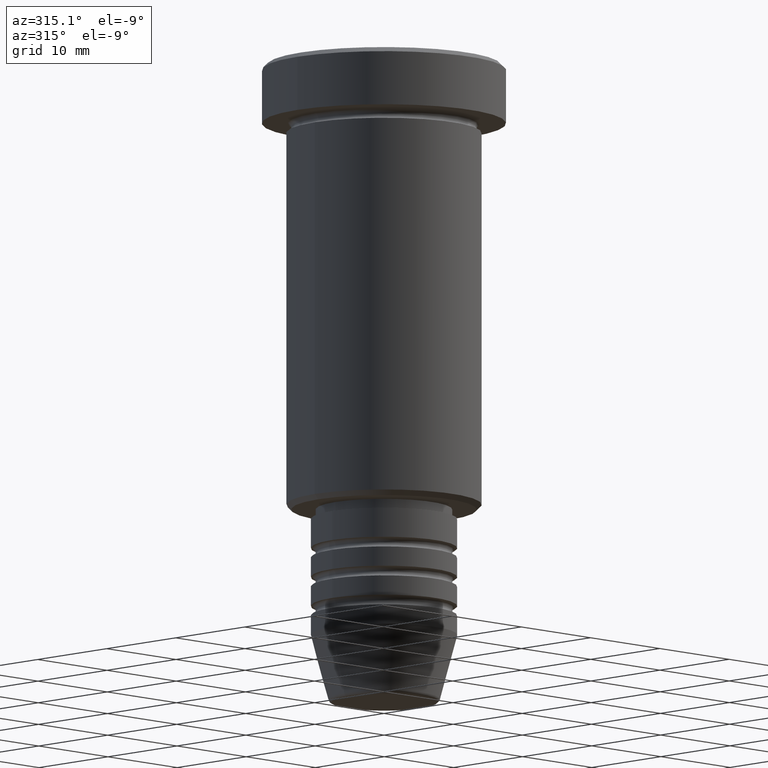
[diagram: clean part render]
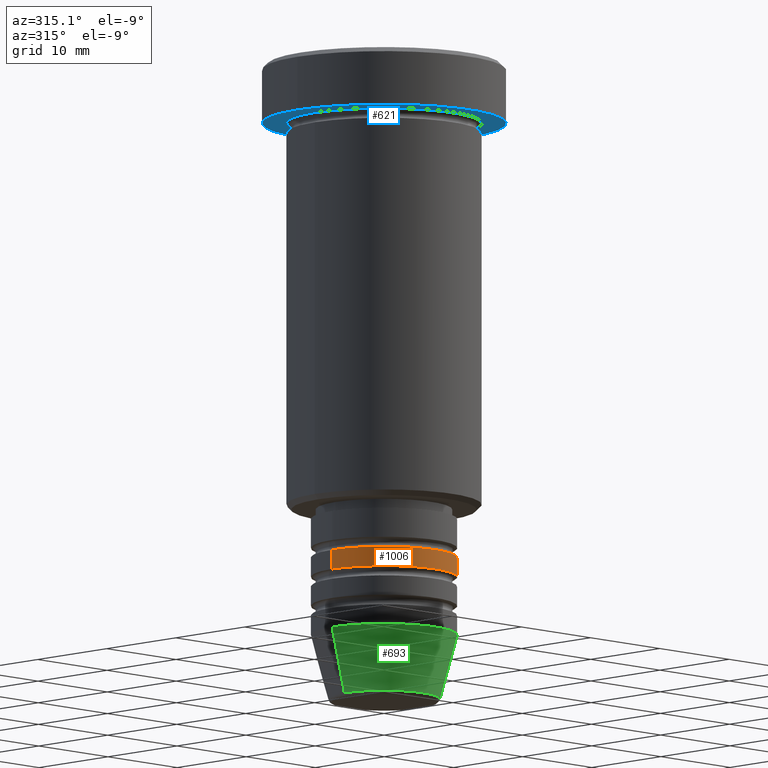
[diagram: same view with three faces highlighted in distinct colors, each labeled with its STEP entity id]
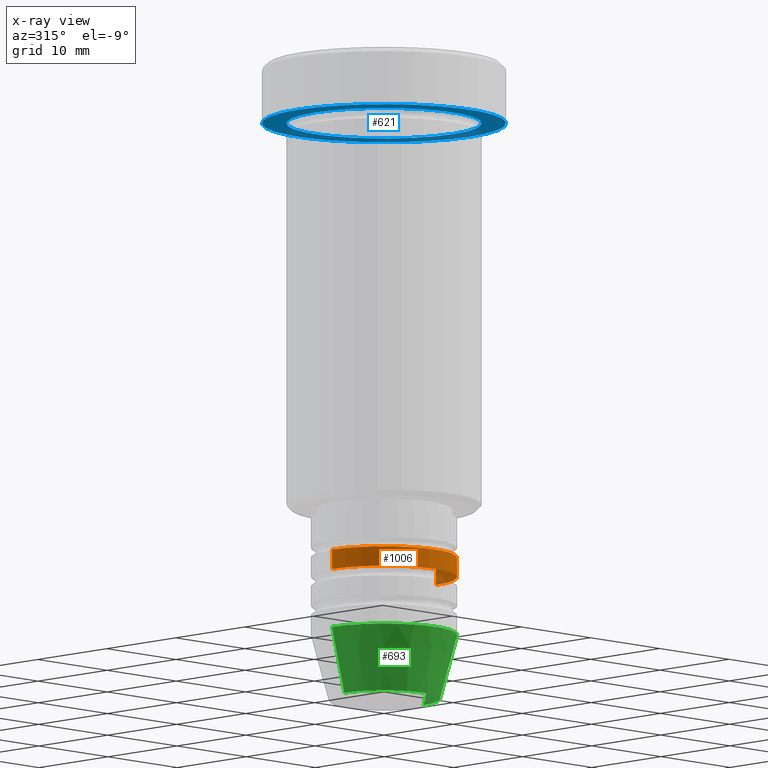
[diagram: x-ray of the same camera — body ghosted, the three highlighted faces saturated]
A machine part, auxiliary view with three faces highlighted in distinct colors.
The next image is the same camera in x-ray (body ghosted, the three faces saturated) — at least one of them is partly hidden behind the body in this view.
Their STEP definitions:

[orange] entity #1006 — the highlighted cylindrical surface (partial cylindrical patch) has radius 7.5 mm, axis along (-0, -0, 1).
#68 = EDGE_CURVE ( 'NONE', #208, #1166, #945, .T. ) ;
#71 = CARTESIAN_POINT ( 'NONE',  ( 0.000000000000000000, 0.000000000000000000, -52.99999999999997868 ) ) ;
#89 = DIRECTION ( 'NONE',  ( 1.000000000000000000, 0.000000000000000000, 0.000000000000000000 ) ) ;
#103 = CARTESIAN_POINT ( 'NONE',  ( -7.500000000000000000, 9.184850993605147944E-16, -50.99999999999997868 ) ) ;
#206 = EDGE_LOOP ( 'NONE', ( #713, #392, #1103, #333 ) ) ;
#208 = VERTEX_POINT ( 'NONE', #240 ) ;
#211 = CIRCLE ( 'NONE', #998, 7.500000000000000000 ) ;
#240 = CARTESIAN_POINT ( 'NONE',  ( -7.500000000000000000, 9.184850993605147944E-16, -52.99999999999997868 ) ) ;
#252 = CIRCLE ( 'NONE', #961, 7.500000000000000000 ) ;
#268 = VECTOR ( 'NONE', #1116, 1000.000000000000000 ) ;
#287 = VECTOR ( 'NONE', #704, 1000.000000000000000 ) ;
#333 = ORIENTED_EDGE ( 'NONE', *, *, #1099, .F. ) ;
#342 = CARTESIAN_POINT ( 'NONE',  ( 7.500000000000000000, 0.000000000000000000, -50.99999999999997868 ) ) ;
#375 = VERTEX_POINT ( 'NONE', #342 ) ;
#392 = ORIENTED_EDGE ( 'NONE', *, *, #418, .T. ) ;
#396 = AXIS2_PLACEMENT_3D ( 'NONE', #1044, #696, #1068 ) ;
#418 = EDGE_CURVE ( 'NONE', #208, #1137, #211, .T. ) ;
#440 = LINE ( 'NONE', #723, #287 ) ;
#515 = FACE_OUTER_BOUND ( 'NONE', #206, .T. ) ;
#696 = DIRECTION ( 'NONE',  ( -0.000000000000000000, -0.000000000000000000, 1.000000000000000000 ) ) ;
#704 = DIRECTION ( 'NONE',  ( -0.000000000000000000, -0.000000000000000000, 1.000000000000000000 ) ) ;
#713 = ORIENTED_EDGE ( 'NONE', *, *, #68, .F. ) ;
#723 = CARTESIAN_POINT ( 'NONE',  ( 7.500000000000000000, 0.000000000000000000, 0.000000000000000000 ) ) ;
#742 = CARTESIAN_POINT ( 'NONE',  ( 0.000000000000000000, 0.000000000000000000, -50.99999999999997868 ) ) ;
#748 = CARTESIAN_POINT ( 'NONE',  ( 7.500000000000000000, 0.000000000000000000, -52.99999999999997868 ) ) ;
#847 = DIRECTION ( 'NONE',  ( 1.000000000000000000, 0.000000000000000000, 0.000000000000000000 ) ) ;
#872 = EDGE_CURVE ( 'NONE', #1137, #375, #440, .T. ) ;
#885 = CYLINDRICAL_SURFACE ( 'NONE', #396, 7.500000000000000000 ) ;
#929 = CARTESIAN_POINT ( 'NONE',  ( -7.500000000000000000, 9.184850993605147944E-16, 0.000000000000000000 ) ) ;
#945 = LINE ( 'NONE', #929, #268 ) ;
#961 = AXIS2_PLACEMENT_3D ( 'NONE', #742, #1105, #847 ) ;
#998 = AXIS2_PLACEMENT_3D ( 'NONE', #71, #1179, #89 ) ;
#1006 = ADVANCED_FACE ( 'NONE', ( #515 ), #885, .T. ) ;
#1044 = CARTESIAN_POINT ( 'NONE',  ( 0.000000000000000000, 0.000000000000000000, 0.000000000000000000 ) ) ;
#1068 = DIRECTION ( 'NONE',  ( 1.000000000000000000, 0.000000000000000000, 0.000000000000000000 ) ) ;
#1099 = EDGE_CURVE ( 'NONE', #1166, #375, #252, .T. ) ;
#1103 = ORIENTED_EDGE ( 'NONE', *, *, #872, .T. ) ;
#1105 = DIRECTION ( 'NONE',  ( -0.000000000000000000, -0.000000000000000000, 1.000000000000000000 ) ) ;
#1116 = DIRECTION ( 'NONE',  ( -0.000000000000000000, -0.000000000000000000, 1.000000000000000000 ) ) ;
#1137 = VERTEX_POINT ( 'NONE', #748 ) ;
#1166 = VERTEX_POINT ( 'NONE', #103 ) ;
#1179 = DIRECTION ( 'NONE',  ( -0.000000000000000000, -0.000000000000000000, 1.000000000000000000 ) ) ;

[blue] entity #621 — the highlighted planar face has unit normal (0, 0, -1).
#22 = AXIS2_PLACEMENT_3D ( 'NONE', #595, #408, #968 ) ;
#30 = DIRECTION ( 'NONE',  ( -0.000000000000000000, -0.000000000000000000, 1.000000000000000000 ) ) ;
#44 = AXIS2_PLACEMENT_3D ( 'NONE', #697, #55, #237 ) ;
#53 = CARTESIAN_POINT ( 'NONE',  ( 0.000000000000000000, 0.000000000000000000, -5.999999999999996447 ) ) ;
#55 = DIRECTION ( 'NONE',  ( 0.000000000000000000, 0.000000000000000000, -1.000000000000000000 ) ) ;
#59 = AXIS2_PLACEMENT_3D ( 'NONE', #297, #30, #564 ) ;
#84 = AXIS2_PLACEMENT_3D ( 'NONE', #53, #774, #422 ) ;
#123 = EDGE_CURVE ( 'NONE', #1100, #989, #657, .T. ) ;
#134 = ORIENTED_EDGE ( 'NONE', *, *, #924, .F. ) ;
#147 = DIRECTION ( 'NONE',  ( -0.000000000000000000, -0.000000000000000000, 1.000000000000000000 ) ) ;
#149 = FACE_BOUND ( 'NONE', #223, .T. ) ;
#203 = ORIENTED_EDGE ( 'NONE', *, *, #238, .T. ) ;
#223 = EDGE_LOOP ( 'NONE', ( #245, #203 ) ) ;
#237 = DIRECTION ( 'NONE',  ( -1.000000000000000000, 0.000000000000000000, -0.000000000000000000 ) ) ;
#238 = EDGE_CURVE ( 'NONE', #660, #421, #1107, .T. ) ;
#245 = ORIENTED_EDGE ( 'NONE', *, *, #973, .T. ) ;
#272 = AXIS2_PLACEMENT_3D ( 'NONE', #782, #147, #312 ) ;
#297 = CARTESIAN_POINT ( 'NONE',  ( 0.000000000000000000, 0.000000000000000000, -5.999999999999996447 ) ) ;
#312 = DIRECTION ( 'NONE',  ( 1.000000000000000000, 0.000000000000000000, 0.000000000000000000 ) ) ;
#335 = FACE_OUTER_BOUND ( 'NONE', #1025, .T. ) ;
#377 = CIRCLE ( 'NONE', #272, 12.50000000000000000 ) ;
#408 = DIRECTION ( 'NONE',  ( -0.000000000000000000, -0.000000000000000000, 1.000000000000000000 ) ) ;
#415 = CARTESIAN_POINT ( 'NONE',  ( -12.50000000000000000, 1.530808498934191521E-15, -5.999999999999996447 ) ) ;
#421 = VERTEX_POINT ( 'NONE', #720 ) ;
#422 = DIRECTION ( 'NONE',  ( -1.000000000000000000, 0.000000000000000000, 0.000000000000000000 ) ) ;
#462 = CARTESIAN_POINT ( 'NONE',  ( 12.50000000000000000, 0.000000000000000000, -5.999999999999996447 ) ) ;
#564 = DIRECTION ( 'NONE',  ( 1.000000000000000000, 0.000000000000000000, 0.000000000000000000 ) ) ;
#584 = ORIENTED_EDGE ( 'NONE', *, *, #123, .F. ) ;
#595 = CARTESIAN_POINT ( 'NONE',  ( 0.000000000000000000, 0.000000000000000000, -5.999999999999996447 ) ) ;
#612 = CARTESIAN_POINT ( 'NONE',  ( 10.00000000000000000, 1.224646799147353256E-15, -5.999999999999996447 ) ) ;
#621 = ADVANCED_FACE ( 'NONE', ( #149, #335 ), #796, .T. ) ;
#657 = CIRCLE ( 'NONE', #59, 12.50000000000000000 ) ;
#660 = VERTEX_POINT ( 'NONE', #612 ) ;
#697 = CARTESIAN_POINT ( 'NONE',  ( 0.000000000000000000, 12.50000000000000000, -5.999999999999996447 ) ) ;
#720 = CARTESIAN_POINT ( 'NONE',  ( -10.00000000000000000, 0.000000000000000000, -5.999999999999996447 ) ) ;
#774 = DIRECTION ( 'NONE',  ( -0.000000000000000000, -0.000000000000000000, 1.000000000000000000 ) ) ;
#782 = CARTESIAN_POINT ( 'NONE',  ( 0.000000000000000000, 0.000000000000000000, -5.999999999999996447 ) ) ;
#796 = PLANE ( 'NONE',  #44 ) ;
#821 = CIRCLE ( 'NONE', #84, 10.00000000000000000 ) ;
#924 = EDGE_CURVE ( 'NONE', #989, #1100, #377, .T. ) ;
#968 = DIRECTION ( 'NONE',  ( -1.000000000000000000, 0.000000000000000000, 0.000000000000000000 ) ) ;
#973 = EDGE_CURVE ( 'NONE', #421, #660, #821, .T. ) ;
#989 = VERTEX_POINT ( 'NONE', #415 ) ;
#1025 = EDGE_LOOP ( 'NONE', ( #584, #134 ) ) ;
#1100 = VERTEX_POINT ( 'NONE', #462 ) ;
#1107 = CIRCLE ( 'NONE', #22, 10.00000000000000000 ) ;

[green] entity #693 — the highlighted conical surface has half-angle 15 deg.
#10 = ORIENTED_EDGE ( 'NONE', *, *, #429, .F. ) ;
#135 = CARTESIAN_POINT ( 'NONE',  ( -7.500000000000000000, 9.184850993605147944E-16, -59.00000000000000000 ) ) ;
#180 = CIRCLE ( 'NONE', #437, 5.723655072137191269 ) ;
#216 = ORIENTED_EDGE ( 'NONE', *, *, #937, .T. ) ;
#269 = FACE_OUTER_BOUND ( 'NONE', #652, .T. ) ;
#318 = ORIENTED_EDGE ( 'NONE', *, *, #635, .F. ) ;
#334 = CARTESIAN_POINT ( 'NONE',  ( 0.000000000000000000, 0.000000000000000000, -65.62940952255127058 ) ) ;
#349 = DIRECTION ( 'NONE',  ( -0.000000000000000000, -0.000000000000000000, 1.000000000000000000 ) ) ;
#376 = AXIS2_PLACEMENT_3D ( 'NONE', #996, #349, #1086 ) ;
#389 = CARTESIAN_POINT ( 'NONE',  ( 7.500000000000000000, 0.000000000000000000, -59.00000000000000000 ) ) ;
#424 = LINE ( 'NONE', #1085, #514 ) ;
#429 = EDGE_CURVE ( 'NONE', #934, #695, #853, .T. ) ;
#437 = AXIS2_PLACEMENT_3D ( 'NONE', #334, #1143, #1064 ) ;
#448 = CARTESIAN_POINT ( 'NONE',  ( 0.000000000000000000, 0.000000000000000000, -59.00000000000000000 ) ) ;
#452 = VERTEX_POINT ( 'NONE', #985 ) ;
#454 = DIRECTION ( 'NONE',  ( -0.000000000000000000, -0.000000000000000000, 1.000000000000000000 ) ) ;
#514 = VECTOR ( 'NONE', #977, 1000.000000000000000 ) ;
#541 = CARTESIAN_POINT ( 'NONE',  ( 5.723655072137191269, 0.000000000000000000, -65.62940952255127058 ) ) ;
#622 = CARTESIAN_POINT ( 'NONE',  ( 7.500000000000000000, 0.000000000000000000, -59.00000000000000000 ) ) ;
#635 = EDGE_CURVE ( 'NONE', #452, #934, #424, .T. ) ;
#652 = EDGE_LOOP ( 'NONE', ( #318, #216, #896, #10 ) ) ;
#659 = CONICAL_SURFACE ( 'NONE', #681, 7.500000000000000000, 0.2617993877991500740 ) ;
#681 = AXIS2_PLACEMENT_3D ( 'NONE', #448, #454, #1090 ) ;
#693 = ADVANCED_FACE ( 'NONE', ( #269 ), #659, .T. ) ;
#695 = VERTEX_POINT ( 'NONE', #622 ) ;
#810 = VERTEX_POINT ( 'NONE', #541 ) ;
#853 = CIRCLE ( 'NONE', #376, 7.500000000000000000 ) ;
#896 = ORIENTED_EDGE ( 'NONE', *, *, #1121, .T. ) ;
#922 = VECTOR ( 'NONE', #926, 1000.000000000000000 ) ;
#926 = DIRECTION ( 'NONE',  ( 0.2588190451025213501, 0.000000000000000000, 0.9659258262890680902 ) ) ;
#934 = VERTEX_POINT ( 'NONE', #135 ) ;
#937 = EDGE_CURVE ( 'NONE', #452, #810, #180, .T. ) ;
#977 = DIRECTION ( 'NONE',  ( -0.2588190451025213501, 3.169619151431772337E-17, 0.9659258262890680902 ) ) ;
#985 = CARTESIAN_POINT ( 'NONE',  ( -5.723655072137190380, 8.097153428560735915E-16, -65.62940952255127058 ) ) ;
#996 = CARTESIAN_POINT ( 'NONE',  ( 0.000000000000000000, 0.000000000000000000, -59.00000000000000000 ) ) ;
#1021 = LINE ( 'NONE', #389, #922 ) ;
#1064 = DIRECTION ( 'NONE',  ( 1.000000000000000000, 0.000000000000000000, 0.000000000000000000 ) ) ;
#1085 = CARTESIAN_POINT ( 'NONE',  ( -7.500000000000000000, 9.184850993605147944E-16, -59.00000000000000000 ) ) ;
#1086 = DIRECTION ( 'NONE',  ( 1.000000000000000000, 0.000000000000000000, 0.000000000000000000 ) ) ;
#1090 = DIRECTION ( 'NONE',  ( 1.000000000000000000, 0.000000000000000000, 0.000000000000000000 ) ) ;
#1121 = EDGE_CURVE ( 'NONE', #810, #695, #1021, .T. ) ;
#1143 = DIRECTION ( 'NONE',  ( -0.000000000000000000, -0.000000000000000000, 1.000000000000000000 ) ) ;